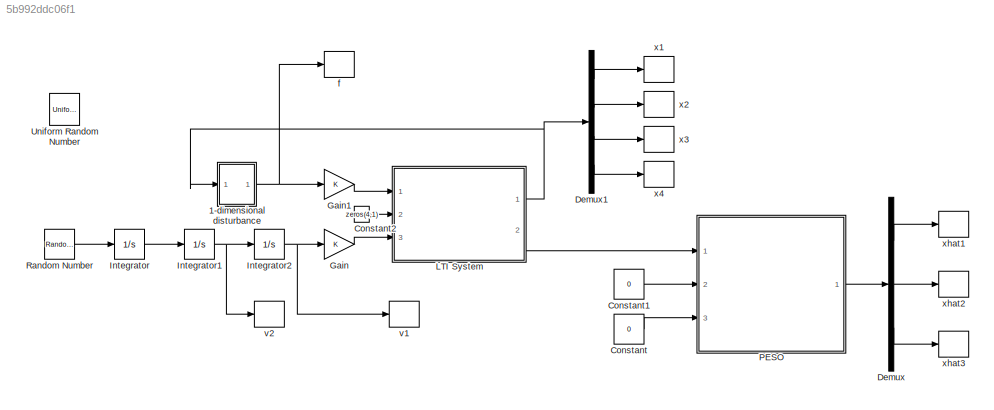
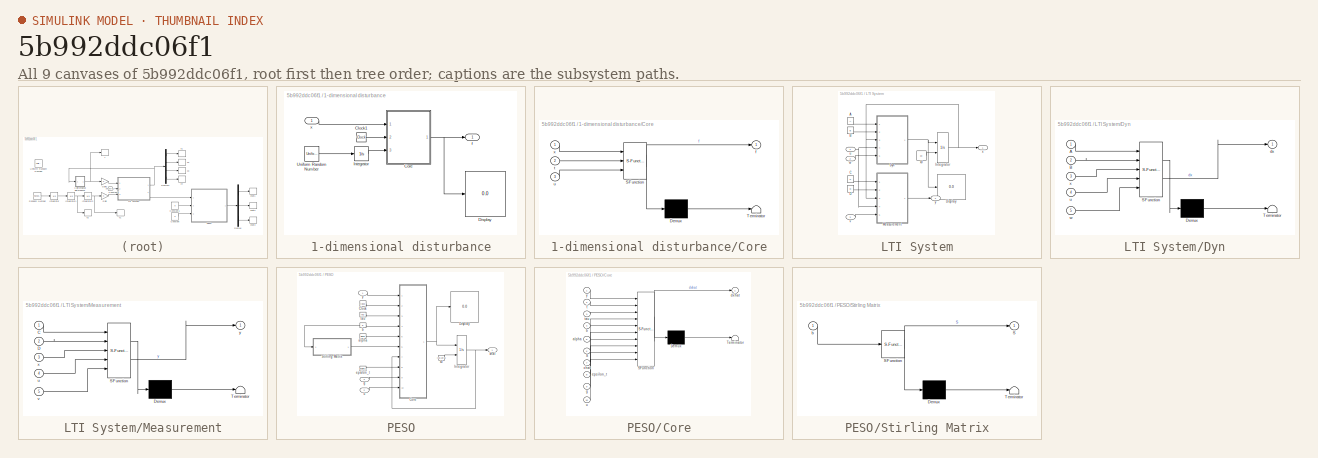
[diagram: thumbnail index - all 9 canvases of the model, root first then tree order]
MODEL slx_5b992ddc06f1
KIND model
CONFIG AbsTol = auto
CONFIG EnableMultiTasking = off
CONFIG FixedStep = 1e-6
CONFIG MaxStep = auto
CONFIG MinStep = auto
CONFIG RelTol = 1e-4
CONFIG SampleTimeConstraint = Unconstrained
CONFIG SolverName = VariableStepAuto
CONFIG StartTime = 0.0
CONFIG StopTime = 20
BLOCK [SubSystem] 1-dimensional disturbance
  Ports = [1, 1]
  RequestExecContextInheritance = off
BLOCK [Clock] 1-dimensional disturbance/Clock1
BLOCK [SubSystem] 1-dimensional disturbance/Core
  ErrorFcn = Stateflow.Translate.translate
  PermitHierarchicalResolution = ExplicitOnly
  Ports = [3, 1]
  RequestExecContextInheritance = off
  SFBlockType = MATLAB Function
  TreatAsAtomicUnit = on
BLOCK [Demux] 1-dimensional disturbance/Core/ Demux 
  Outputs = 1
  Ports = [1, 1]
BLOCK [S-Function] 1-dimensional disturbance/Core/ SFunction 
  EnableBusSupport = on
  FunctionName = sf_sfun
  PortCounts = [3 2]
  Ports = [3, 2]
  SFcnIsStateOwnerBlock = off
  SFunctionDeploymentMode = off
  Tag = Stateflow S-Function 3
BLOCK [Terminator] 1-dimensional disturbance/Core/ Terminator 
BLOCK [Outport] 1-dimensional disturbance/Core/f
BLOCK [Inport] 1-dimensional disturbance/Core/t
  Port = 2
BLOCK [Inport] 1-dimensional disturbance/Core/u
  Port = 3
BLOCK [Inport] 1-dimensional disturbance/Core/x
BLOCK [Display] 1-dimensional disturbance/Display
  Decimation = 1
  Ports = [1]
BLOCK [Integrator] 1-dimensional disturbance/Integrator
  Ports = [1, 1]
BLOCK [UniformRandomNumber] 1-dimensional disturbance/Uniform Random Number
  SampleTime = 1e-4
BLOCK [Outport] 1-dimensional disturbance/f
BLOCK [Inport] 1-dimensional disturbance/x
BLOCK [Constant] Constant
  Value = 0
BLOCK [Constant] Constant1
  Value = 0
BLOCK [Constant] Constant2
  Value = zeros(4,1)
BLOCK [Demux] Demux
  Outputs = 3
  Ports = [1, 3]
BLOCK [Demux] Demux1
  Ports = [1, 4]
BLOCK [Gain] Gain
BLOCK [Gain] Gain1
BLOCK [Integrator] Integrator
  Ports = [1, 1]
BLOCK [Integrator] Integrator1
  Ports = [1, 1]
BLOCK [Integrator] Integrator2
  Ports = [1, 1]
BLOCK [SubSystem] LTI System
  Ports = [3, 2]
  RequestExecContextInheritance = off
BLOCK [Constant] LTI System/A
  Value = A
BLOCK [Constant] LTI System/B
  Value = B
BLOCK [Constant] LTI System/C
  Value = C
BLOCK [Constant] LTI System/D
  Value = D
BLOCK [Display] LTI System/Display
  Decimation = 1
  Ports = [1]
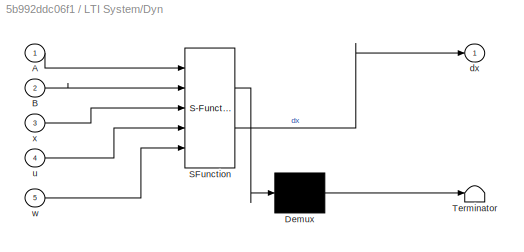
BLOCK [SubSystem] LTI System/Dyn
  ErrorFcn = Stateflow.Translate.translate
  PermitHierarchicalResolution = ExplicitOnly
  Ports = [5, 1]
  RequestExecContextInheritance = off
  SFBlockType = MATLAB Function
  TreatAsAtomicUnit = on
BLOCK [Demux] LTI System/Dyn/ Demux 
  Outputs = 1
  Ports = [1, 1]
BLOCK [S-Function] LTI System/Dyn/ SFunction 
  EnableBusSupport = on
  FunctionName = sf_sfun
  PortCounts = [5 2]
  Ports = [5, 2]
  SFcnIsStateOwnerBlock = off
  SFunctionDeploymentMode = off
  Tag = Stateflow S-Function 2
BLOCK [Terminator] LTI System/Dyn/ Terminator 
BLOCK [Inport] LTI System/Dyn/A
BLOCK [Inport] LTI System/Dyn/B
  Port = 2
BLOCK [Outport] LTI System/Dyn/dx
BLOCK [Inport] LTI System/Dyn/u
  Port = 4
BLOCK [Inport] LTI System/Dyn/w
  Port = 5
BLOCK [Inport] LTI System/Dyn/x
  Port = 3
BLOCK [Integrator] LTI System/Integrator
  InitialConditionSource = external
  Ports = [2, 1]
BLOCK [SubSystem] LTI System/Measurement
  ErrorFcn = Stateflow.Translate.translate
  PermitHierarchicalResolution = ExplicitOnly
  Ports = [5, 1]
  RequestExecContextInheritance = off
  SFBlockType = MATLAB Function
  TreatAsAtomicUnit = on
BLOCK [Demux] LTI System/Measurement/ Demux 
  Outputs = 1
  Ports = [1, 1]
BLOCK [S-Function] LTI System/Measurement/ SFunction 
  EnableBusSupport = on
  FunctionName = sf_sfun
  PortCounts = [5 2]
  Ports = [5, 2]
  SFcnIsStateOwnerBlock = off
  SFunctionDeploymentMode = off
  Tag = Stateflow S-Function 1
BLOCK [Terminator] LTI System/Measurement/ Terminator 
BLOCK [Inport] LTI System/Measurement/C
BLOCK [Inport] LTI System/Measurement/D
  Port = 2
BLOCK [Inport] LTI System/Measurement/u
  Port = 4
BLOCK [Inport] LTI System/Measurement/v
  Port = 5
BLOCK [Inport] LTI System/Measurement/x
  Port = 3
BLOCK [Outport] LTI System/Measurement/y
BLOCK [Inport] LTI System/u
BLOCK [Inport] LTI System/v
  Port = 3
BLOCK [Inport] LTI System/w
  Port = 2
BLOCK [Outport] LTI System/x
BLOCK [Constant] LTI System/x0
  Value = x0
BLOCK [Outport] LTI System/y
  Port = 2
BLOCK [SubSystem] PESO
  Ports = [3, 1]
  RequestExecContextInheritance = off
BLOCK [Clock] PESO/Clock
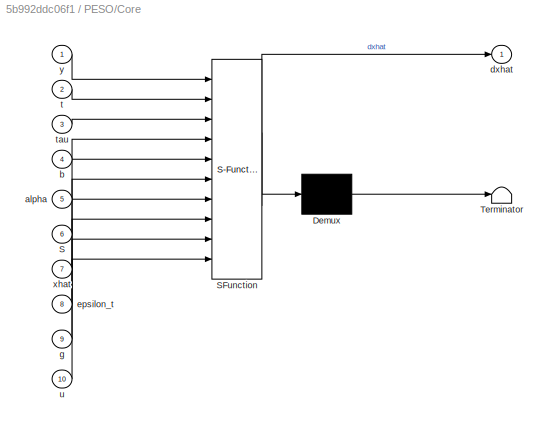
BLOCK [SubSystem] PESO/Core
  ErrorFcn = Stateflow.Translate.translate
  PermitHierarchicalResolution = ExplicitOnly
  Ports = [10, 1]
  RequestExecContextInheritance = off
  SFBlockType = MATLAB Function
  TreatAsAtomicUnit = on
BLOCK [Demux] PESO/Core/ Demux 
  Outputs = 1
  Ports = [1, 1]
BLOCK [S-Function] PESO/Core/ SFunction 
  EnableBusSupport = on
  FunctionName = sf_sfun
  PortCounts = [10 2]
  Ports = [10, 2]
  SFcnIsStateOwnerBlock = off
  SFunctionDeploymentMode = off
  Tag = Stateflow S-Function 4
BLOCK [Terminator] PESO/Core/ Terminator 
BLOCK [Inport] PESO/Core/S
  Port = 6
BLOCK [Inport] PESO/Core/alpha
  Port = 5
BLOCK [Inport] PESO/Core/b
  Port = 4
BLOCK [Outport] PESO/Core/dxhat
BLOCK [Inport] PESO/Core/epsilon_t
  Port = 8
BLOCK [Inport] PESO/Core/g
  Port = 9
BLOCK [Inport] PESO/Core/t
  Port = 2
BLOCK [Inport] PESO/Core/tau
  Port = 3
BLOCK [Inport] PESO/Core/u
  Port = 10
BLOCK [Inport] PESO/Core/xhat
  Port = 7
BLOCK [Inport] PESO/Core/y
BLOCK [Display] PESO/Display
  Decimation = 1
  Ports = [1]
BLOCK [Integrator] PESO/Integrator
  InitialConditionSource = external
  Ports = [2, 1]
BLOCK [SubSystem] PESO/Stirling Matrix
  ErrorFcn = Stateflow.Translate.translate
  PermitHierarchicalResolution = ExplicitOnly
  Ports = [1, 1]
  RequestExecContextInheritance = off
  SFBlockType = MATLAB Function
  TreatAsAtomicUnit = on
BLOCK [Demux] PESO/Stirling Matrix/ Demux 
  Outputs = 1
  Ports = [1, 1]
BLOCK [S-Function] PESO/Stirling Matrix/ SFunction 
  EnableBusSupport = on
  FunctionName = sf_sfun
  PortCounts = [1 2]
  Ports = [1, 2]
  SFcnIsStateOwnerBlock = off
  SFunctionDeploymentMode = off
  Tag = Stateflow S-Function 5
BLOCK [Terminator] PESO/Stirling Matrix/ Terminator 
BLOCK [Outport] PESO/Stirling Matrix/S
BLOCK [Inport] PESO/Stirling Matrix/b
BLOCK [Constant] PESO/alpha
  Value = alpha
BLOCK [Constant] PESO/b
  Value = b
BLOCK [Constant] PESO/epsilon_t
  Value = epsilon_t
BLOCK [Inport] PESO/g
  Port = 3
BLOCK [Constant] PESO/tau
  Value = tau
BLOCK [Inport] PESO/u
  Port = 2
BLOCK [Constant] PESO/x0
  Value = [x0;1e-6]
BLOCK [Outport] PESO/xhat
BLOCK [Inport] PESO/y
BLOCK [RandomNumber] Random Number
  SampleTime = 1e-4
  Variance = 1e-6
BLOCK [UniformRandomNumber] Uniform Random Number
  Commented = on
  Maximum = 1e-3
  Minimum = -1e-3
  SampleTime = 1e-4
  Seed = -100
BLOCK [ToWorkspace] f
  FixptAsFi = on
  MaxDataPoints = inf
  Ports = [1]
  SampleTime = -1
  Save2DSignal = 2-D array (concatenate along first dimension)
  VariableName = f
BLOCK [ToWorkspace] v1
  FixptAsFi = on
  MaxDataPoints = inf
  Ports = [1]
  SampleTime = -1
  Save2DSignal = 2-D array (concatenate along first dimension)
  VariableName = v1
BLOCK [ToWorkspace] v2
  FixptAsFi = on
  MaxDataPoints = inf
  Ports = [1]
  SampleTime = -1
  Save2DSignal = 2-D array (concatenate along first dimension)
  VariableName = v2
BLOCK [ToWorkspace] x1
  FixptAsFi = on
  MaxDataPoints = inf
  Ports = [1]
  SampleTime = -1
  Save2DSignal = 2-D array (concatenate along first dimension)
  VariableName = x1
BLOCK [ToWorkspace] x2
  FixptAsFi = on
  MaxDataPoints = inf
  Ports = [1]
  SampleTime = -1
  Save2DSignal = 2-D array (concatenate along first dimension)
  VariableName = x2
BLOCK [ToWorkspace] x3
  FixptAsFi = on
  MaxDataPoints = inf
  Ports = [1]
  SampleTime = -1
  Save2DSignal = 2-D array (concatenate along first dimension)
  VariableName = x3
BLOCK [ToWorkspace] x4
  FixptAsFi = on
  MaxDataPoints = inf
  Ports = [1]
  SampleTime = -1
  Save2DSignal = 2-D array (concatenate along first dimension)
  VariableName = x4
BLOCK [ToWorkspace] xhat1
  FixptAsFi = on
  MaxDataPoints = inf
  Ports = [1]
  SampleTime = -1
  Save2DSignal = 2-D array (concatenate along first dimension)
  VariableName = xhat1
BLOCK [ToWorkspace] xhat2
  FixptAsFi = on
  MaxDataPoints = inf
  Ports = [1]
  SampleTime = -1
  Save2DSignal = 2-D array (concatenate along first dimension)
  VariableName = xhat2
BLOCK [ToWorkspace] xhat3
  FixptAsFi = on
  MaxDataPoints = inf
  Ports = [1]
  SampleTime = -1
  Save2DSignal = 2-D array (concatenate along first dimension)
  VariableName = xhat3
LINE 1-dimensional disturbance/Clock1:1 -> 1-dimensional disturbance/Core:2
NET 1-dimensional disturbance/Core:1 -> 1-dimensional disturbance/Display:1, 1-dimensional disturbance/f:1
LINE 1-dimensional disturbance/Integrator:1 -> 1-dimensional disturbance/Core:3
LINE 1-dimensional disturbance/Uniform Random Number:1 -> 1-dimensional disturbance/Integrator:1
LINE 1-dimensional disturbance/x:1 -> 1-dimensional disturbance/Core:1
NET 1-dimensional disturbance:1 -> Gain1:1, f:1
LINE Constant1:1 -> PESO:2
LINE Constant2:1 -> LTI System:2
LINE Constant:1 -> PESO:3
LINE Demux1:1 -> x1:1
LINE Demux1:2 -> x2:1
LINE Demux1:3 -> x3:1
LINE Demux1:4 -> x4:1
LINE Demux:1 -> xhat1:1
LINE Demux:2 -> xhat2:1
LINE Demux:3 -> xhat3:1
LINE Gain1:1 -> LTI System:1
LINE Gain:1 -> LTI System:3
NET Integrator1:1 -> Integrator2:1, v2:1
NET Integrator2:1 -> Gain:1, v1:1
LINE Integrator:1 -> Integrator1:1
LINE LTI System/A:1 -> LTI System/Dyn:1
LINE LTI System/B:1 -> LTI System/Dyn:2
LINE LTI System/C:1 -> LTI System/Measurement:1
LINE LTI System/D:1 -> LTI System/Measurement:2
NET LTI System/Dyn:1 -> LTI System/Display:1, LTI System/Integrator:1
NET LTI System/Integrator:1 -> LTI System/Dyn:3, LTI System/Measurement:3, LTI System/x:1
LINE LTI System/Measurement:1 -> LTI System/y:1
NET LTI System/u:1 -> LTI System/Dyn:4, LTI System/Measurement:4
LINE LTI System/v:1 -> LTI System/Measurement:5
LINE LTI System/w:1 -> LTI System/Dyn:5
LINE LTI System/x0:1 -> LTI System/Integrator:2
NET LTI System:1 -> 1-dimensional disturbance:1, Demux1:1
LINE LTI System:2 -> PESO:1
LINE PESO/Clock:1 -> PESO/Core:2
NET PESO/Core:1 -> PESO/Display:1, PESO/Integrator:1
NET PESO/Integrator:1 -> PESO/Core:7, PESO/xhat:1
LINE PESO/Stirling Matrix:1 -> PESO/Core:6
LINE PESO/alpha:1 -> PESO/Core:5
NET PESO/b:1 -> PESO/Core:4, PESO/Stirling Matrix:1
LINE PESO/epsilon_t:1 -> PESO/Core:8
LINE PESO/g:1 -> PESO/Core:9
LINE PESO/tau:1 -> PESO/Core:3
LINE PESO/u:1 -> PESO/Core:10
LINE PESO/x0:1 -> PESO/Integrator:2
LINE PESO/y:1 -> PESO/Core:1
LINE PESO:1 -> Demux:1
LINE Random Number:1 -> Integrator:1
note: NET lines group one-source signal fan-out (src -> all destinations, sorted); 1:1 wires keep LINE
CHART LTI System/Measurement states=1 transitions=1
  STATE_LABEL 'eML_blk_kernel()'
  STATE_LABEL 'SCRIPT:\nfunction y  = y_gen(C,D,x,u,v)\n\ny = C*x+D*u+v;\n'
CHART LTI System/Dyn states=1 transitions=1
  STATE_LABEL 'eML_blk_kernel()'
  STATE_LABEL 'SCRIPT:\nfunction dx  = dx_gen(A,B,x,u,w)\n\ndx = A*x+B*u+w;\n'
CHART 1-dimensional disturbance/Core states=1 transitions=1
  STATE_LABEL 'eML_blk_kernel()'
  STATE_LABEL 'SCRIPT:\nfunction f = fcn(x,t,u)\n\nf=(t^3+t^2+t+1)*(sin(x(1))+cos(x(1))+u);\n\n\n'
CHART PESO/Core states=1 transitions=1
  STATE_LABEL 'eML_blk_kernel()'
  STATE_LABEL 'SCRIPT:\nfunction dxhat = PTC_gen(y,t,tau,b,alpha,S,xhat,epsilon_t,g,u)\n\nif t>tau-epsilon_t\n    \n    t=tau-epsilon_t;\n    \nend\n\nn=length(b)-1;\n\ndxhat=zeros(n+1,1);\n\np=zeros(n+1,1);\n\nfor i=1:n+1\n    \n    sum=0;\n    \n    for j=i:n+1\n        \n        sum=sum+S(j,i)*(b(n-j+2))*(-1)^(j-i)/(alpha^(n-j+2)*(tau-t)^(n-i+2));\n        \n    end\n    \n    p(n-i+2)=-S(n+2,i)*(-1)^(n-i+2)/(tau-t)^(n-i+2)+sum;\n    ...<+146ch>'
CHART PESO/Stirling Matrix states=1 transitions=1
  STATE_LABEL 'eML_blk_kernel()'
  STATE_LABEL 'SCRIPT:\nfunction S = Stirling_gen(b)\n\nn=length(b)+1;\n\nS=zeros(n,n);\n\nfor i=1:n\n    \n    for j=1:n\n        \n        if i>=j\n            \n            m=0;\n\n            for l=0:j-1\n    \n                sum=1/factorial(j-1)*(-1)^l*(factorial(j-1)/(factorial(l)*factorial(j-1-l)))*(j-1-l)^(i-1);\n                \n                m=m+sum;\n                \n            end\n            \n            S(i,j)=m;...<+51ch>'
CHART  states=0 transitions=0
CHART  states=0 transitions=0
CHART  states=0 transitions=0
CHART  states=0 transitions=0
CHART  states=0 transitions=0
